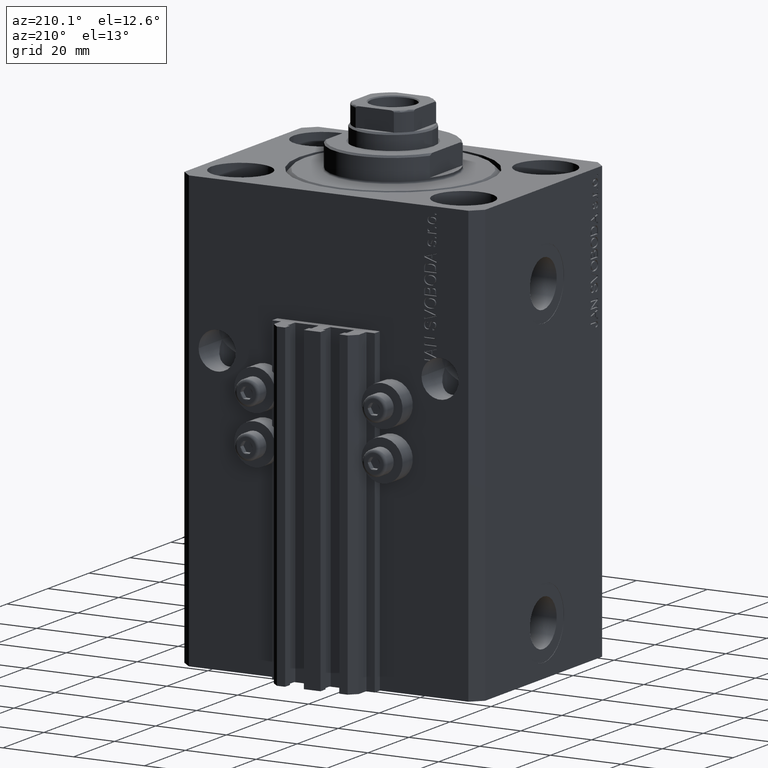
[diagram: clean part render]
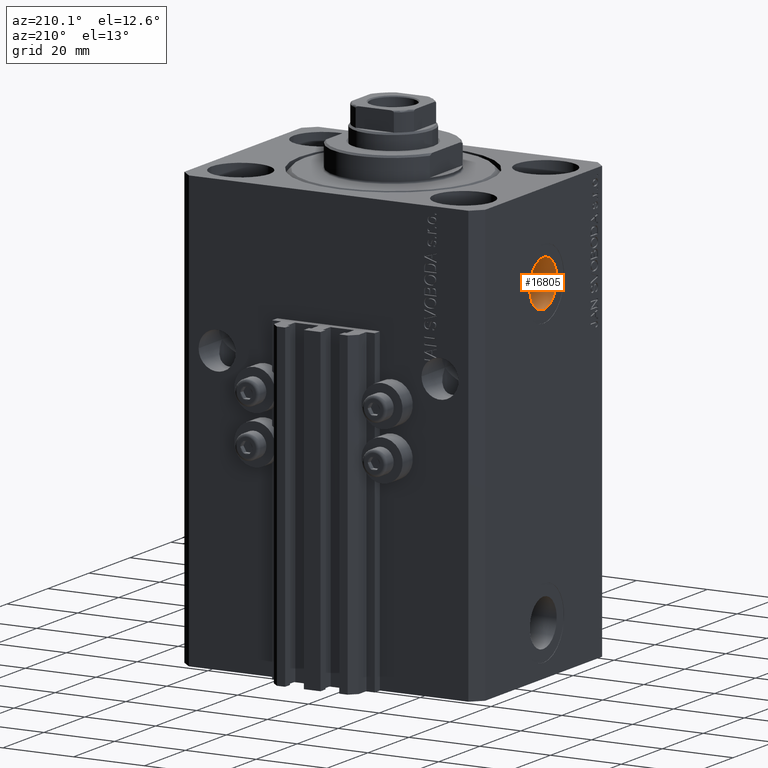
[diagram: same view with one face highlighted and labeled with its STEP entity id]
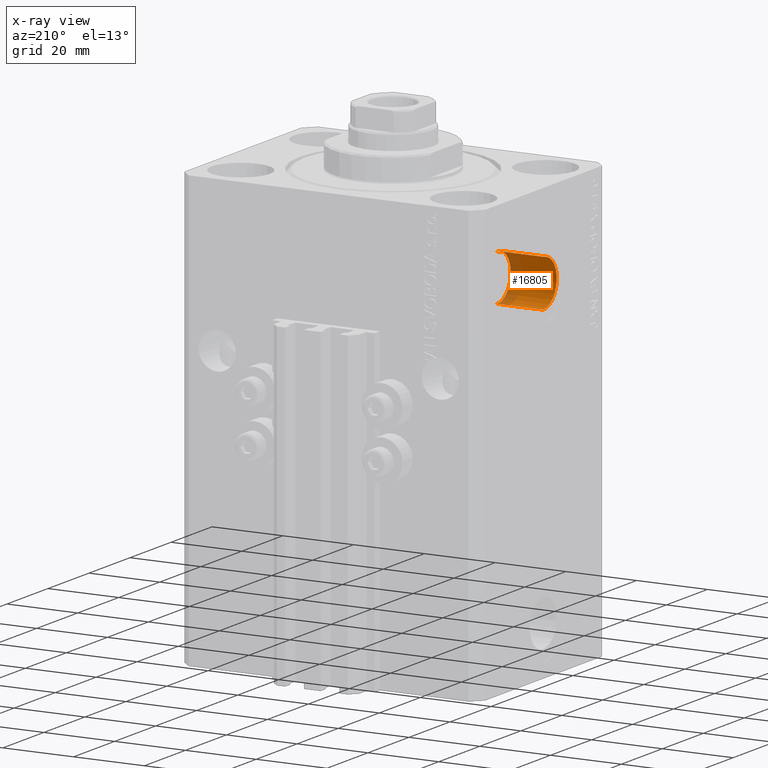
[diagram: x-ray of the same camera — body ghosted, the highlighted face saturated]
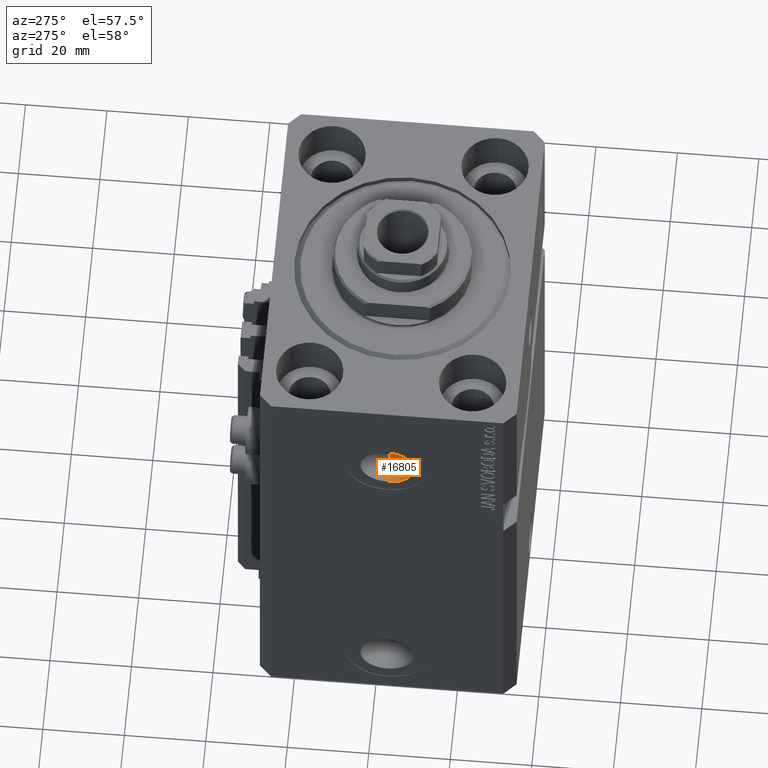
[diagram: same view with one face highlighted and labeled with its STEP entity id]
A machine part, auxiliary view. The second image highlights one B-rep face of the part: STEP entity #16805.
The next image is the same camera in x-ray: the body ghosted, the highlighted face saturated — about 26% of this face is hidden behind the body in this view.
A second angle (auxiliary view) of the same face is appended — the face is thin or edge-on in the first view.
In plain terms, the highlighted cylindrical surface (edge-blend (fillet) strip) has radius 6.58 mm, axis along (-1, -0, -0).
Its self-contained STEP definition (entity closure, byte-faithful):
#1300 = ORIENTED_EDGE ( 'NONE', *, *, #44877, .T. ) ;
#2166 = DIRECTION ( 'NONE',  ( -1.000000000000000000, 0.000000000000000000, 0.000000000000000000 ) ) ;
#5528 = CARTESIAN_POINT ( 'NONE',  ( -42.39999999999999858, -3.469446951953614189E-15, -24.00000000000000000 ) ) ;
#8382 = AXIS2_PLACEMENT_3D ( 'NONE', #14202, #35385, #28164 ) ;
#8588 = VERTEX_POINT ( 'NONE', #34805 ) ;
#9411 = DIRECTION ( 'NONE',  ( -1.000000000000000000, -0.000000000000000000, -0.000000000000000000 ) ) ;
#9453 = LINE ( 'NONE', #19398, #22627 ) ;
#10826 = CIRCLE ( 'NONE', #35418, 6.579999999999999183 ) ;
#11799 = CARTESIAN_POINT ( 'NONE',  ( -29.40000000000000213, -3.469446951953614189E-15, -17.42000000000000171 ) ) ;
#11822 = VERTEX_POINT ( 'NONE', #14141 ) ;
#12207 = DIRECTION ( 'NONE',  ( -1.000000000000000000, -0.000000000000000000, -0.000000000000000000 ) ) ;
#12357 = EDGE_CURVE ( 'NONE', #46348, #15153, #31451, .T. ) ;
#13046 = ORIENTED_EDGE ( 'NONE', *, *, #16040, .T. ) ;
#14141 = CARTESIAN_POINT ( 'NONE',  ( -42.39999999999999858, -3.469446951953614189E-15, -17.42000000000000171 ) ) ;
#14202 = CARTESIAN_POINT ( 'NONE',  ( -29.40000000000000213, -3.469446951953614189E-15, -24.00000000000000000 ) ) ;
#15153 = VERTEX_POINT ( 'NONE', #11799 ) ;
#16040 = EDGE_CURVE ( 'NONE', #8588, #11822, #10826, .T. ) ;
#16805 = ADVANCED_FACE ( 'NONE', ( #41547 ), #38665, .F. ) ;
#19398 = CARTESIAN_POINT ( 'NONE',  ( -29.40000000000000213, -3.469446951953614189E-15, -17.42000000000000171 ) ) ;
#20301 = ORIENTED_EDGE ( 'NONE', *, *, #12357, .F. ) ;
#20756 = VECTOR ( 'NONE', #9411, 1000.000000000000000 ) ;
#22627 = VECTOR ( 'NONE', #34074, 1000.000000000000000 ) ;
#23277 = DIRECTION ( 'NONE',  ( 0.000000000000000000, 0.000000000000000000, 1.000000000000000000 ) ) ;
#24551 = LINE ( 'NONE', #39235, #20756 ) ;
#27600 = CARTESIAN_POINT ( 'NONE',  ( -29.40000000000000213, -3.469446951953614189E-15, -24.00000000000000000 ) ) ;
#28164 = DIRECTION ( 'NONE',  ( 0.000000000000000000, 0.000000000000000000, 1.000000000000000000 ) ) ;
#28194 = EDGE_CURVE ( 'NONE', #15153, #11822, #9453, .T. ) ;
#29122 = ORIENTED_EDGE ( 'NONE', *, *, #28194, .F. ) ;
#31292 = DIRECTION ( 'NONE',  ( 0.000000000000000000, 0.000000000000000000, 1.000000000000000000 ) ) ;
#31451 = CIRCLE ( 'NONE', #8382, 6.579999999999999183 ) ;
#34074 = DIRECTION ( 'NONE',  ( -1.000000000000000000, -0.000000000000000000, -0.000000000000000000 ) ) ;
#34805 = CARTESIAN_POINT ( 'NONE',  ( -42.39999999999999858, -2.663629358114655936E-15, -30.57999999999999829 ) ) ;
#35385 = DIRECTION ( 'NONE',  ( -1.000000000000000000, 0.000000000000000000, 0.000000000000000000 ) ) ;
#35418 = AXIS2_PLACEMENT_3D ( 'NONE', #5528, #2166, #31292 ) ;
#36160 = CARTESIAN_POINT ( 'NONE',  ( -29.40000000000000213, -2.663629358114655936E-15, -30.57999999999999829 ) ) ;
#36988 = AXIS2_PLACEMENT_3D ( 'NONE', #27600, #12207, #23277 ) ;
#38665 = CYLINDRICAL_SURFACE ( 'NONE', #36988, 6.579999999999999183 ) ;
#39235 = CARTESIAN_POINT ( 'NONE',  ( -29.40000000000000213, -2.663629358114655936E-15, -30.57999999999999829 ) ) ;
#39935 = EDGE_LOOP ( 'NONE', ( #20301, #1300, #13046, #29122 ) ) ;
#41547 = FACE_OUTER_BOUND ( 'NONE', #39935, .T. ) ;
#44877 = EDGE_CURVE ( 'NONE', #46348, #8588, #24551, .T. ) ;
#46348 = VERTEX_POINT ( 'NONE', #36160 ) ;